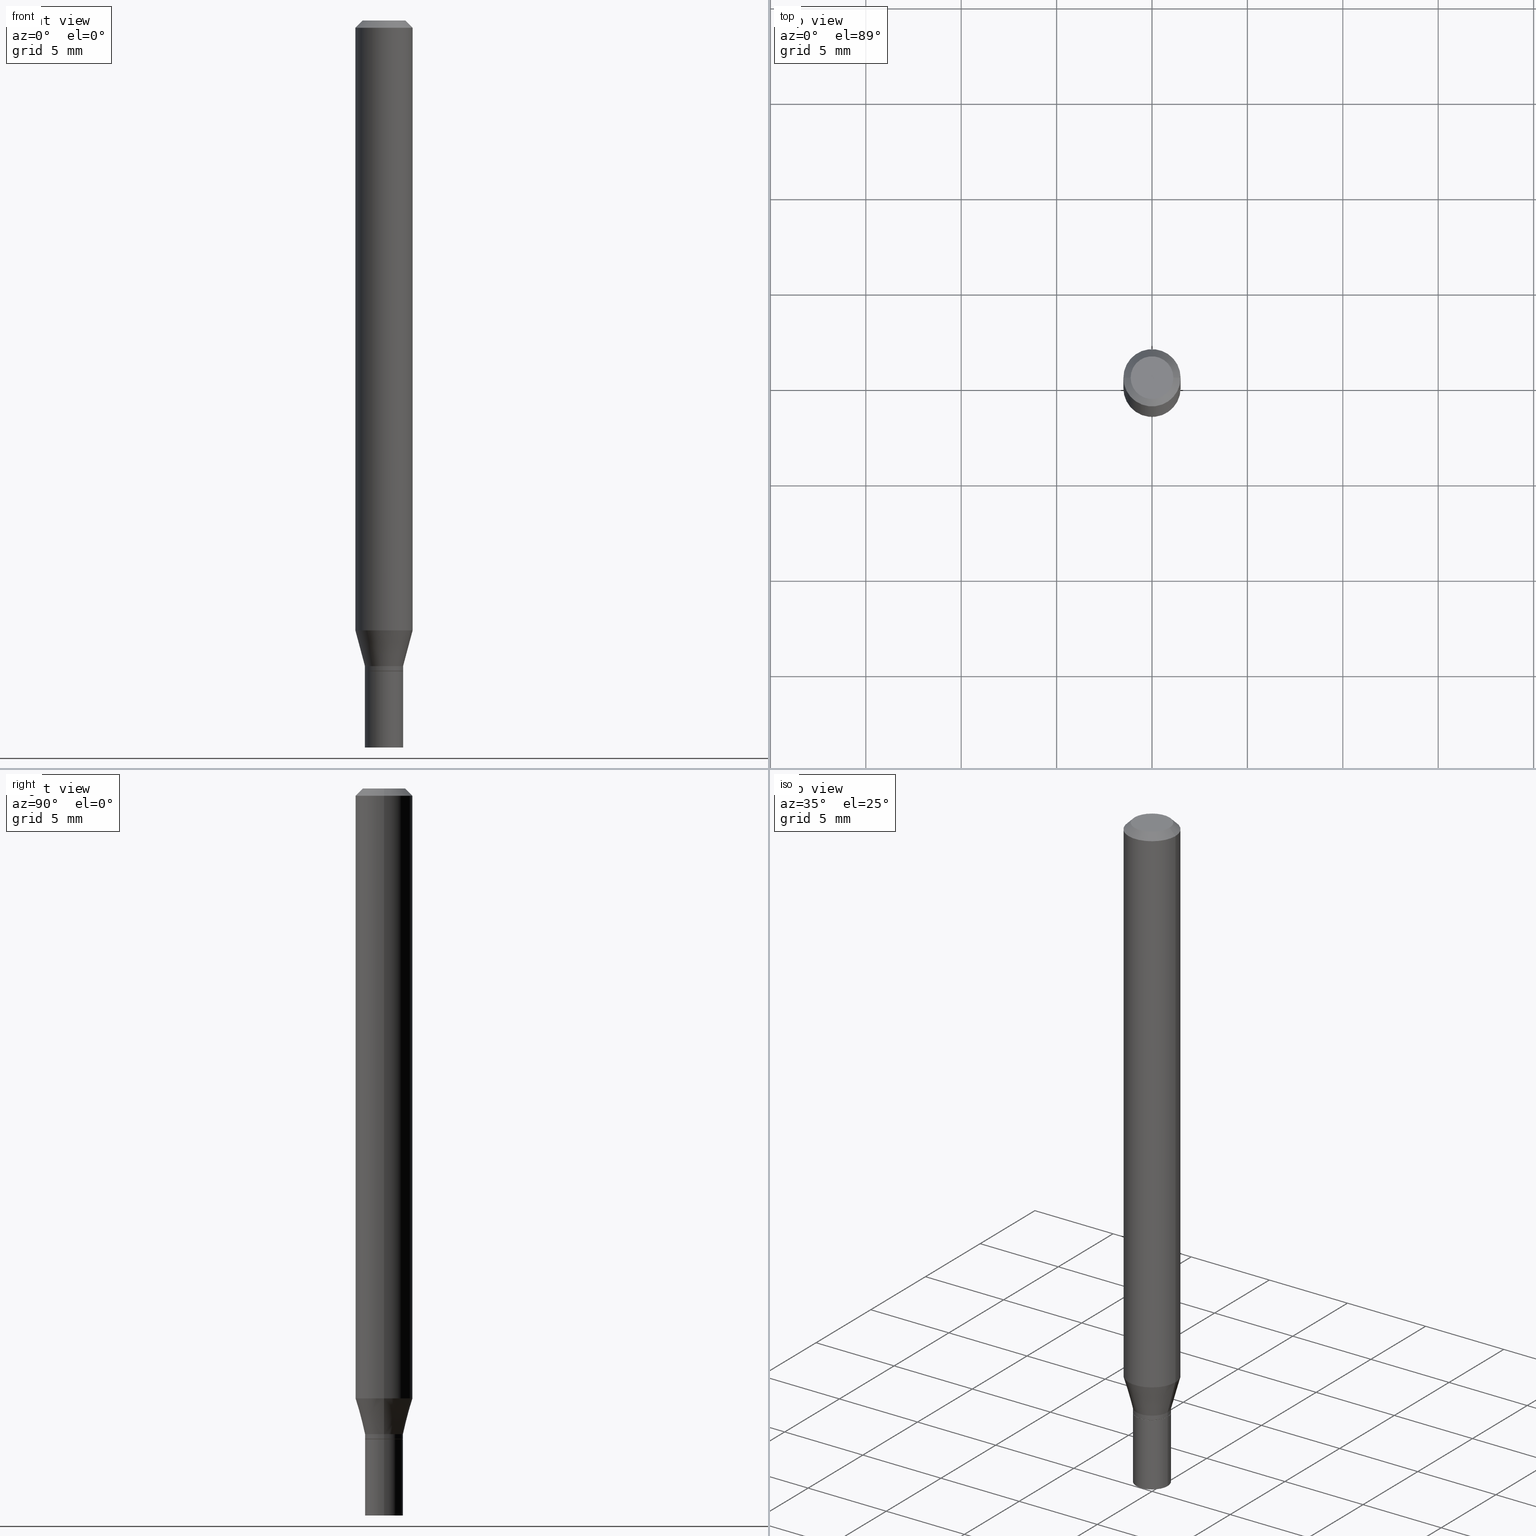
[diagram: canonical four-view strip — front | top / right | iso, engineering-drawing reading convention]
A machine part, canonical four-view strip (front | top / right | iso — engineering-drawing reading convention). The complete STEP part file that produces these views, byte-faithful:
ISO-10303-21;
HEADER;
FILE_DESCRIPTION (( 'STEP AP203' ),
    '1' );
FILE_NAME ('41613.STEP',
    '2024-03-12T19:15:27',
    ( '' ),
    ( '' ),
    'SwSTEP 2.0',
    'SolidWorks 2023',
    '' );
FILE_SCHEMA (( 'CONFIG_CONTROL_DESIGN' ));
ENDSEC;

DATA;
#1 = DIRECTION ( 'NONE',  ( 2.438088387897960049E-29, -3.491481338843145188E-15, -1.000000000000000000 ) ) ;
#2 = AXIS2_PLACEMENT_3D ( 'NONE', #194, #224, #183 ) ;
#3 = CIRCLE ( 'NONE', #431, 0.03935000000000000303 ) ;
#4 = CARTESIAN_POINT ( 'NONE',  ( 0.000000000000000000, 0.000000000000000000, 0.000000000000000000 ) ) ;
#5 = APPROVAL_ROLE ( '' ) ;
#6 = DIRECTION ( 'NONE',  ( 1.000000000000000000, -6.982962677686256455E-15, 0.000000000000000000 ) ) ;
#7 = CARTESIAN_POINT ( 'NONE',  ( 3.281819137900453618E-29, -4.685567956727501750E-15, -1.342000000000000304 ) ) ;
#8 = AXIS2_PLACEMENT_3D ( 'NONE', #396, #403, #324 ) ;
#9 = CARTESIAN_POINT ( 'NONE',  ( 3.257364449838602072E-29, -4.650653143339069312E-15, -1.331999999999999851 ) ) ;
#10 = CARTESIAN_POINT ( 'NONE',  ( 3.668203209277705088E-31, -5.237222008264718399E-17, -0.01499999999999999944 ) ) ;
#11 = EDGE_CURVE ( 'NONE', #166, #392, #422, .T. ) ;
#12 = PRODUCT_RELATED_PRODUCT_CATEGORY ( 'detail', '', ( #415 ) ) ;
#13 = DIRECTION ( 'NONE',  ( 1.000000000000000000, -6.982962677686265922E-15, 4.819687581474398999E-29 ) ) ;
#14 = CONICAL_SURFACE ( 'NONE', #110, 0.03934999999999993364, 0.2617993877991502960 ) ;
#15 = DIRECTION ( 'NONE',  ( -0.7071067811865396902, 2.468850131082174625E-15, -0.7071067811865553443 ) ) ;
#16 = ORIENTED_EDGE ( 'NONE', *, *, #290, .F. ) ;
#17 = LINE ( 'NONE', #86, #462 ) ;
#18 = ORIENTED_EDGE ( 'NONE', *, *, #114, .F. ) ;
#19 = ADVANCED_FACE ( 'NONE', ( #387 ), #27, .F. ) ;
#20 = DIRECTION ( 'NONE',  ( -2.445468806185136597E-29, 3.491481338843145583E-15, 1.000000000000000000 ) ) ;
#21 = EDGE_LOOP ( 'NONE', ( #264, #357, #225, #424 ) ) ;
#22 = DIRECTION ( 'NONE',  ( -2.445468806185136597E-29, 3.491481338843145583E-15, 1.000000000000000000 ) ) ;
#23 = AXIS2_PLACEMENT_3D ( 'NONE', #313, #273, #233 ) ;
#24 = ORIENTED_EDGE ( 'NONE', *, *, #312, .F. ) ;
#25 = FACE_OUTER_BOUND ( 'NONE', #299, .T. ) ;
#26 = DIRECTION ( 'NONE',  ( 1.000000000000000000, -6.982962677686266711E-15, 4.876176775795936353E-29 ) ) ;
#27 = PLANE ( 'NONE',  #60 ) ;
#28 = VECTOR ( 'NONE', #185, 39.37007874015748143 ) ;
#29 = DATE_AND_TIME ( #380, #414 ) ;
#30 = VERTEX_POINT ( 'NONE', #276 ) ;
#31 = EDGE_CURVE ( 'NONE', #460, #140, #87, .T. ) ;
#32 = VERTEX_POINT ( 'NONE', #102 ) ;
#33 = DIRECTION ( 'NONE',  ( -2.445468806185136597E-29, 3.491481338843145583E-15, 1.000000000000000000 ) ) ;
#34 = CC_DESIGN_APPROVAL ( #280, ( #443 ) ) ;
#35 = EDGE_CURVE ( 'NONE', #392, #123, #315, .T. ) ;
#36 = DIRECTION ( 'NONE',  ( -0.7071067811865656694, 7.493145998870420424E-15, 0.7071067811865294761 ) ) ;
#37 = CARTESIAN_POINT ( 'NONE',  ( 3.576687321579069994E-29, -5.368277968210015545E-15, -1.500000000000000222 ) ) ;
#38 = FACE_OUTER_BOUND ( 'NONE', #377, .T. ) ;
#39 = VECTOR ( 'NONE', #252, 39.37007874015748143 ) ;
#40 = CIRCLE ( 'NONE', #227, 0.03935000000000000303 ) ;
#41 = DIRECTION ( 'NONE',  ( 2.445468806185136597E-29, -3.491481338843145583E-15, -1.000000000000000000 ) ) ;
#42 = EDGE_CURVE ( 'NONE', #140, #460, #412, .T. ) ;
#43 = DIRECTION ( 'NONE',  ( 1.000000000000000000, -6.982962677686265922E-15, 4.876176775795935793E-29 ) ) ;
#44 = ORIENTED_EDGE ( 'NONE', *, *, #304, .T. ) ;
#45 = ADVANCED_FACE ( 'NONE', ( #25 ), #205, .F. ) ;
#46 = CARTESIAN_POINT ( 'NONE',  ( 0.04404999999999999888, -3.798447818264455642E-16, 3.533548453838735986E-16 ) ) ;
#47 = PERSON ( 'UNSPECIFIED', 'UNSPECIFIED', 'UNSPECIFIED', ('UNSPECIFIED'), ('UNSPECIFIED'), ('UNSPECIFIED') ) ;
#48 = ORIENTED_EDGE ( 'NONE', *, *, #350, .F. ) ;
#49 = VECTOR ( 'NONE', #105, 39.37007874015748143 ) ;
#50 =( GEOMETRIC_REPRESENTATION_CONTEXT ( 3 ) GLOBAL_UNCERTAINTY_ASSIGNED_CONTEXT ( ( #120 ) ) GLOBAL_UNIT_ASSIGNED_CONTEXT ( ( #386, #281, #454 ) ) REPRESENTATION_CONTEXT ( 'NONE', 'WORKASPACE' ) );
#51 = LINE ( 'NONE', #124, #405 ) ;
#52 = EDGE_LOOP ( 'NONE', ( #409, #464, #314, #230 ) ) ;
#53 = ADVANCED_FACE ( 'NONE', ( #385 ), #354, .T. ) ;
#54 = CARTESIAN_POINT ( 'NONE',  ( 0.000000000000000000, 0.000000000000000000, 0.000000000000000000 ) ) ;
#55 = ORIENTED_EDGE ( 'NONE', *, *, #42, .F. ) ;
#56 = CARTESIAN_POINT ( 'NONE',  ( -0.03934999999999993364, 2.795985665215989516E-16, -1.935600958015302139E-30 ) ) ;
#57 = ORIENTED_EDGE ( 'NONE', *, *, #290, .T. ) ;
#58 = MANIFOLD_SOLID_BREP ( 'Body-Move/Copy2[1]', #382 ) ;
#59 = EDGE_CURVE ( 'NONE', #123, #301, #199, .T. ) ;
#60 = AXIS2_PLACEMENT_3D ( 'NONE', #234, #134, #381 ) ;
#61 = DIRECTION ( 'NONE',  ( 1.000000000000000000, -6.982962677686265922E-15, 4.819687581474398999E-29 ) ) ;
#62 = CIRCLE ( 'NONE', #218, 0.03934999999999993364 ) ;
#63 = DIRECTION ( 'NONE',  ( -2.445468806185136597E-29, 3.491481338843145583E-15, 1.000000000000000000 ) ) ;
#64 = COORDINATED_UNIVERSAL_TIME_OFFSET ( 5, 0, .BEHIND. ) ;
#65 = VERTEX_POINT ( 'NONE', #398 ) ;
#66 = APPLICATION_PROTOCOL_DEFINITION ( 'international standard', 'config_control_design', 1994, #111 ) ;
#67 = DIRECTION ( 'NONE',  ( -1.000000000000000000, 6.982962677686265922E-15, -4.876176775795935793E-29 ) ) ;
#68 = ADVANCED_FACE ( 'NONE', ( #107 ), #69, .T. ) ;
#69 = CONICAL_SURFACE ( 'NONE', #188, 0.05905000000000001914, 0.7853981633974372878 ) ;
#70 = DIRECTION ( 'NONE',  ( -2.445468806185136597E-29, 3.491481338843145583E-15, 1.000000000000000000 ) ) ;
#71 = DATE_AND_TIME ( #248, #254 ) ;
#72 = ORIENTED_EDGE ( 'NONE', *, *, #221, .T. ) ;
#73 = CARTESIAN_POINT ( 'NONE',  ( 0.05905000000000000526, -4.123439461173741313E-16, 2.879382386107500571E-30 ) ) ;
#74 = APPLICATION_CONTEXT ( 'configuration controlled 3d designs of mechanical parts and assemblies' ) ;
#75 = DIRECTION ( 'NONE',  ( -2.445468806185136597E-29, 3.491481338843145583E-15, 1.000000000000000000 ) ) ;
#76 = VECTOR ( 'NONE', #98, 39.37007874015748143 ) ;
#77 = CYLINDRICAL_SURFACE ( 'NONE', #136, 0.03935000000000000303 ) ;
#78 = DATE_AND_TIME ( #257, #236 ) ;
#79 = DIRECTION ( 'NONE',  ( -2.445468806185136597E-29, 3.491481338843145583E-15, 1.000000000000000000 ) ) ;
#80 = CARTESIAN_POINT ( 'NONE',  ( 3.668203209277704895E-29, -5.237222008264718177E-15, -1.500000000000000222 ) ) ;
#81 = CONICAL_SURFACE ( 'NONE', #404, 0.03885000000000000259, 0.7853981633974739252 ) ;
#82 = VECTOR ( 'NONE', #90, 39.37007874015748143 ) ;
#83 = CYLINDRICAL_SURFACE ( 'NONE', #352, 0.03934999999999993364 ) ;
#84 = ADVANCED_FACE ( 'NONE', ( #178 ), #14, .T. ) ;
#85 = FACE_OUTER_BOUND ( 'NONE', #274, .T. ) ;
#86 = CARTESIAN_POINT ( 'NONE',  ( -0.03935000000000000303, 2.795985665215994447E-16, -1.935600958015305291E-30 ) ) ;
#87 = CIRCLE ( 'NONE', #291, 0.03885000000000000259 ) ;
#88 = DIRECTION ( 'NONE',  ( -2.445468806185136877E-29, 3.491481338843145188E-15, 1.000000000000000000 ) ) ;
#89 = ORIENTED_EDGE ( 'NONE', *, *, #171, .T. ) ;
#90 = DIRECTION ( 'NONE',  ( 0.7071067811865396902, -7.319954787623229224E-15, -0.7071067811865553443 ) ) ;
#91 = VERTEX_POINT ( 'NONE', #213 ) ;
#92 = ADVANCED_FACE ( 'NONE', ( #153 ), #287, .T. ) ;
#93 = APPROVAL_ROLE ( '' ) ;
#94 = ORIENTED_EDGE ( 'NONE', *, *, #319, .F. ) ;
#95 = AXIS2_PLACEMENT_3D ( 'NONE', #322, #70, #348 ) ;
#96 = PERSON_AND_ORGANIZATION ( #47, #117 ) ;
#97 = LOCAL_TIME ( 15, 15, 27.00000000000000000, #133 ) ;
#98 = DIRECTION ( 'NONE',  ( 0.2588190451025215721, 1.565188264969619995E-15, 0.9659258262890679791 ) ) ;
#99 = CARTESIAN_POINT ( 'NONE',  ( -8.641182519006289553E-45, 1.233731848647591164E-30, 3.533548453838711334E-16 ) ) ;
#100 = ORIENTED_EDGE ( 'NONE', *, *, #319, .T. ) ;
#101 = DIRECTION ( 'NONE',  ( 1.000000000000000000, -6.982962677686266711E-15, 0.000000000000000000 ) ) ;
#102 = CARTESIAN_POINT ( 'NONE',  ( 0.05905000000000001914, -4.647161662000214077E-16, -0.01499999999999999944 ) ) ;
#103 = DATE_TIME_ROLE ( 'creation_date' ) ;
#104 = AXIS2_PLACEMENT_3D ( 'NONE', #138, #244, #238 ) ;
#105 = DIRECTION ( 'NONE',  ( -2.445468806185136877E-29, 3.491481338843145188E-15, 1.000000000000000000 ) ) ;
#106 = PRODUCT_DEFINITION_FORMATION_WITH_SPECIFIED_SOURCE ( 'ANY', '', #415, .NOT_KNOWN. ) ;
#107 = FACE_OUTER_BOUND ( 'NONE', #21, .T. ) ;
#108 = DIRECTION ( 'NONE',  ( 1.000000000000000000, -6.982962677686258033E-15, 0.000000000000000000 ) ) ;
#109 = LINE ( 'NONE', #73, #235 ) ;
#110 = AXIS2_PLACEMENT_3D ( 'NONE', #113, #182, #359 ) ;
#111 = APPLICATION_CONTEXT ( 'configuration controlled 3d designs of mechanical parts and assemblies' ) ;
#112 = SECURITY_CLASSIFICATION_LEVEL ( 'unclassified' ) ;
#113 = CARTESIAN_POINT ( 'NONE',  ( 3.257364449838602072E-29, -4.650653143339069312E-15, -1.331999999999999851 ) ) ;
#114 = EDGE_CURVE ( 'NONE', #392, #32, #109, .T. ) ;
#115 = CARTESIAN_POINT ( 'NONE',  ( 0.000000000000000000, 0.000000000000000000, 0.000000000000000000 ) ) ;
#116 = CARTESIAN_POINT ( 'NONE',  ( 0.05904999999999999832, -4.806298490176690937E-15, -1.258478599090893102 ) ) ;
#117 = ORGANIZATION ( 'UNSPECIFIED', 'UNSPECIFIED', '' ) ;
#118 = DIRECTION ( 'NONE',  ( -2.445468806185136597E-29, 3.491481338843145583E-15, 1.000000000000000000 ) ) ;
#119 = EDGE_LOOP ( 'NONE', ( #318, #389, #272, #18 ) ) ;
#120 = UNCERTAINTY_MEASURE_WITH_UNIT (LENGTH_MEASURE( 1.000000000000000082E-05 ), #386, 'distance_accuracy_value', 'NONE');
#121 = CARTESIAN_POINT ( 'NONE',  ( 0.03885000000000000259, -4.958601797425034374E-15, -1.342500000000000249 ) ) ;
#122 = CC_DESIGN_PERSON_AND_ORGANIZATION_ASSIGNMENT ( #421, #167, ( #408 ) ) ;
#123 = VERTEX_POINT ( 'NONE', #177 ) ;
#124 = CARTESIAN_POINT ( 'NONE',  ( -0.05905000000000001914, 3.599717260347269535E-16, -0.01499999999999999944 ) ) ;
#125 = EDGE_LOOP ( 'NONE', ( #379, #411, #242, #310 ) ) ;
#126 = AXIS2_PLACEMENT_3D ( 'NONE', #137, #308, #101 ) ;
#127 = LINE ( 'NONE', #121, #202 ) ;
#128 = EDGE_LOOP ( 'NONE', ( #89, #282, #303, #455 ) ) ;
#129 = PRODUCT_DEFINITION_SHAPE ( 'NONE', 'NONE',  #408 ) ;
#130 = ORIENTED_EDGE ( 'NONE', *, *, #336, .T. ) ;
#131 = ADVANCED_FACE ( 'NONE', ( #258 ), #325, .T. ) ;
#132 = EDGE_CURVE ( 'NONE', #140, #278, #152, .T. ) ;
#133 = COORDINATED_UNIVERSAL_TIME_OFFSET ( 5, 0, .BEHIND. ) ;
#134 = DIRECTION ( 'NONE',  ( 2.438088387897960049E-29, -3.491481338843145188E-15, -1.000000000000000000 ) ) ;
#135 = ADVANCED_FACE ( 'NONE', ( #38 ), #344, .T. ) ;
#136 = AXIS2_PLACEMENT_3D ( 'NONE', #180, #250, #439 ) ;
#137 = CARTESIAN_POINT ( 'NONE',  ( 3.668203209277705088E-31, -5.237222008264718399E-17, -0.01499999999999999944 ) ) ;
#138 = CARTESIAN_POINT ( 'NONE',  ( 3.077570157328349519E-29, -4.393954544059317594E-15, -1.258478599090893102 ) ) ;
#139 = ADVANCED_FACE ( 'NONE', ( #217 ), #77, .T. ) ;
#140 = VERTEX_POINT ( 'NONE', #330 ) ;
#141 = ADVANCED_FACE ( 'NONE', ( #394 ), #363, .F. ) ;
#142 = CARTESIAN_POINT ( 'NONE',  ( -0.05905000000000000526, 4.195754854663391971E-16, -2.904631170795522242E-30 ) ) ;
#143 = CIRCLE ( 'NONE', #430, 0.05905000000000001914 ) ;
#144 = ORIENTED_EDGE ( 'NONE', *, *, #11, .F. ) ;
#145 = AXIS2_PLACEMENT_3D ( 'NONE', #373, #22, #13 ) ;
#146 = CARTESIAN_POINT ( 'NONE',  ( -0.03885000000000000259, -4.411267844554123968E-15, -1.342500000000000249 ) ) ;
#147 = SHAPE_DEFINITION_REPRESENTATION ( #129, #259 ) ;
#148 = DIRECTION ( 'NONE',  ( 1.000000000000000000, -6.982962677686269077E-15, 0.000000000000000000 ) ) ;
#149 = DIRECTION ( 'NONE',  ( -2.445468806185136597E-29, 3.491481338843145583E-15, 1.000000000000000000 ) ) ;
#150 = AXIS2_PLACEMENT_3D ( 'NONE', #115, #79, #288 ) ;
#151 = APPROVAL_PERSON_ORGANIZATION ( #388, #228, #93 ) ;
#152 = LINE ( 'NONE', #146, #181 ) ;
#153 = FACE_OUTER_BOUND ( 'NONE', #52, .T. ) ;
#154 = DIRECTION ( 'NONE',  ( -2.445468806185136597E-29, 3.491481338843145583E-15, 1.000000000000000000 ) ) ;
#155 = VERTEX_POINT ( 'NONE', #368 ) ;
#156 = CC_DESIGN_SECURITY_CLASSIFICATION ( #443, ( #106 ) ) ;
#157 = DIRECTION ( 'NONE',  ( 1.000000000000000000, -6.982962677686256455E-15, 0.000000000000000000 ) ) ;
#158 = ORIENTED_EDGE ( 'NONE', *, *, #171, .F. ) ;
#159 = ADVANCED_FACE ( 'NONE', ( #295 ), #187, .T. ) ;
#160 = CARTESIAN_POINT ( 'NONE',  ( 0.05905000000000001914, -4.574846268510562433E-16, -0.01499999999999999944 ) ) ;
#161 = DIRECTION ( 'NONE',  ( 1.000000000000000000, -6.982962677686269077E-15, 0.000000000000000000 ) ) ;
#162 = APPROVAL ( #237, 'UNSPECIFIED' ) ;
#163 = AXIS2_PLACEMENT_3D ( 'NONE', #173, #320, #26 ) ;
#164 = CIRCLE ( 'NONE', #247, 0.04404999999999999888 ) ;
#165 = CARTESIAN_POINT ( 'NONE',  ( 0.000000000000000000, 0.000000000000000000, 0.000000000000000000 ) ) ;
#166 = VERTEX_POINT ( 'NONE', #327 ) ;
#167 = PERSON_AND_ORGANIZATION_ROLE ( 'creator' ) ;
#168 = ORIENTED_EDGE ( 'NONE', *, *, #420, .T. ) ;
#169 = ORIENTED_EDGE ( 'NONE', *, *, #11, .T. ) ;
#170 = CARTESIAN_POINT ( 'NONE',  ( 3.283041872303546419E-29, -4.687313697396923253E-15, -1.342500000000000249 ) ) ;
#171 = EDGE_CURVE ( 'NONE', #65, #278, #253, .T. ) ;
#172 = APPROVAL_DATE_TIME ( #29, #228 ) ;
#173 = CARTESIAN_POINT ( 'NONE',  ( 0.000000000000000000, 0.000000000000000000, 0.000000000000000000 ) ) ;
#174 = VERTEX_POINT ( 'NONE', #293 ) ;
#175 = DIRECTION ( 'NONE',  ( 1.000000000000000000, -6.982962677686265922E-15, 4.876176775795935793E-29 ) ) ;
#176 = PERSON_AND_ORGANIZATION_ROLE ( 'classification_officer' ) ;
#177 = CARTESIAN_POINT ( 'NONE',  ( -0.05904999999999999832, -3.974379058592978101E-15, -1.258478599090893102 ) ) ;
#178 = FACE_OUTER_BOUND ( 'NONE', #374, .T. ) ;
#179 = PERSON_AND_ORGANIZATION ( #47, #117 ) ;
#180 = CARTESIAN_POINT ( 'NONE',  ( 0.000000000000000000, 0.000000000000000000, 0.000000000000000000 ) ) ;
#181 = VECTOR ( 'NONE', #36, 39.37007874015748143 ) ;
#182 = DIRECTION ( 'NONE',  ( -2.445468806185136597E-29, 3.491481338843145583E-15, 1.000000000000000000 ) ) ;
#183 = DIRECTION ( 'NONE',  ( 1.000000000000000000, -6.982962677686269077E-15, 0.000000000000000000 ) ) ;
#184 = ORIENTED_EDGE ( 'NONE', *, *, #283, .T. ) ;
#185 = DIRECTION ( 'NONE',  ( -2.445468806185136877E-29, 3.491481338843145188E-15, 1.000000000000000000 ) ) ;
#186 = ORIENTED_EDGE ( 'NONE', *, *, #428, .F. ) ;
#187 = CONICAL_SURFACE ( 'NONE', #459, 0.03934999999999993364, 0.2617993877991502960 ) ;
#188 = AXIS2_PLACEMENT_3D ( 'NONE', #210, #41, #208 ) ;
#189 = CIRCLE ( 'NONE', #126, 0.05905000000000001914 ) ;
#190 = DIRECTION ( 'NONE',  ( -2.445468806185136597E-29, 3.491481338843145583E-15, 1.000000000000000000 ) ) ;
#191 = ORIENTED_EDGE ( 'NONE', *, *, #401, .T. ) ;
#192 = DIRECTION ( 'NONE',  ( 1.000000000000000000, -6.982962677686256455E-15, 0.000000000000000000 ) ) ;
#193 = EDGE_LOOP ( 'NONE', ( #16, #130, #449, #207 ) ) ;
#194 = CARTESIAN_POINT ( 'NONE',  ( 3.283041872303546419E-29, -4.687313697396923253E-15, -1.342500000000000249 ) ) ;
#195 = ORIENTED_EDGE ( 'NONE', *, *, #221, .F. ) ;
#196 = VECTOR ( 'NONE', #263, 39.37007874015748143 ) ;
#197 = CARTESIAN_POINT ( 'NONE',  ( 2.747795813669874081E-16, 0.03934999999999531234, -1.342500000000000471 ) ) ;
#198 = APPROVAL_DATE_TIME ( #71, #162 ) ;
#199 = LINE ( 'NONE', #142, #49 ) ;
#200 = PERSON_AND_ORGANIZATION ( #47, #117 ) ;
#201 = ORIENTED_EDGE ( 'NONE', *, *, #341, .T. ) ;
#202 = VECTOR ( 'NONE', #219, 39.37007874015748143 ) ;
#203 = DIRECTION ( 'NONE',  ( 0.000000000000000000, 0.000000000000000000, 1.000000000000000000 ) ) ;
#204 = MANIFOLD_SOLID_BREP ( 'Body-Move/Copy2[2]', #245 ) ;
#205 = PLANE ( 'NONE',  #328 ) ;
#206 = DIRECTION ( 'NONE',  ( -2.445468806185136597E-29, 3.491481338843145583E-15, 1.000000000000000000 ) ) ;
#207 = ORIENTED_EDGE ( 'NONE', *, *, #283, .F. ) ;
#208 = DIRECTION ( 'NONE',  ( -1.000000000000000000, 6.982962677686266711E-15, 0.000000000000000000 ) ) ;
#209 = EDGE_CURVE ( 'NONE', #65, #166, #215, .T. ) ;
#210 = CARTESIAN_POINT ( 'NONE',  ( 3.668203209277705088E-31, -5.237222008264718399E-17, -0.01499999999999999944 ) ) ;
#211 = AXIS2_PLACEMENT_3D ( 'NONE', #347, #203, #349 ) ;
#212 = DATE_AND_TIME ( #214, #360 ) ;
#213 = CARTESIAN_POINT ( 'NONE',  ( -0.03934999999999993364, -4.172716817705224403E-15, -1.331999999999999851 ) ) ;
#214 = CALENDAR_DATE ( 2024, 12, 3 ) ;
#215 = LINE ( 'NONE', #260, #39 ) ;
#216 = PERSON_AND_ORGANIZATION ( #47, #117 ) ;
#217 = FACE_OUTER_BOUND ( 'NONE', #426, .T. ) ;
#218 = AXIS2_PLACEMENT_3D ( 'NONE', #261, #154, #407 ) ;
#219 = DIRECTION ( 'NONE',  ( 0.7071067811865656694, -2.468850131082446387E-15, 0.7071067811865294761 ) ) ;
#220 = EDGE_CURVE ( 'NONE', #123, #392, #307, .T. ) ;
#221 = EDGE_CURVE ( 'NONE', #155, #268, #366, .T. ) ;
#222 = CARTESIAN_POINT ( 'NONE',  ( 3.668203209277704895E-29, -5.237222008264718177E-15, -1.500000000000000222 ) ) ;
#223 = ORIENTED_EDGE ( 'NONE', *, *, #361, .F. ) ;
#224 = DIRECTION ( 'NONE',  ( -2.445468806185136597E-29, 3.491481338843145583E-15, 1.000000000000000000 ) ) ;
#225 = ORIENTED_EDGE ( 'NONE', *, *, #240, .T. ) ;
#226 = AXIS2_PLACEMENT_3D ( 'NONE', #80, #331, #148 ) ;
#227 = AXIS2_PLACEMENT_3D ( 'NONE', #222, #118, #342 ) ;
#228 = APPROVAL ( #353, 'UNSPECIFIED' ) ;
#229 = LINE ( 'NONE', #441, #28 ) ;
#230 = ORIENTED_EDGE ( 'NONE', *, *, #418, .F. ) ;
#231 = CARTESIAN_POINT ( 'NONE',  ( -0.03935000000000000303, -4.682669286309222109E-15, -1.500000000000000222 ) ) ;
#232 = ORIENTED_EDGE ( 'NONE', *, *, #35, .F. ) ;
#233 = DIRECTION ( 'NONE',  ( 1.000000000000000000, -6.982962677686256455E-15, 0.000000000000000000 ) ) ;
#234 = CARTESIAN_POINT ( 'NONE',  ( 3.075995059520799729E-16, 0.04404999999999999888, 2.287766971589501637E-17 ) ) ;
#235 = VECTOR ( 'NONE', #436, 39.37007874015748143 ) ;
#236 = LOCAL_TIME ( 15, 15, 27.00000000000000000, #393 ) ;
#237 = APPROVAL_STATUS ( 'not_yet_approved' ) ;
#238 = DIRECTION ( 'NONE',  ( 1.000000000000000000, -6.982962677686273021E-15, 0.000000000000000000 ) ) ;
#239 = CC_DESIGN_PERSON_AND_ORGANIZATION_ASSIGNMENT ( #179, #176, ( #443 ) ) ;
#240 = EDGE_CURVE ( 'NONE', #32, #301, #143, .T. ) ;
#241 =( LENGTH_UNIT ( ) NAMED_UNIT ( * ) SI_UNIT ( $, .METRE. ) );
#242 = ORIENTED_EDGE ( 'NONE', *, *, #114, .T. ) ;
#243 = APPLICATION_PROTOCOL_DEFINITION ( 'international standard', 'config_control_design', 1994, #74 ) ;
#244 = DIRECTION ( 'NONE',  ( -2.445468806185136597E-29, 3.491481338843145583E-15, 1.000000000000000000 ) ) ;
#245 = CLOSED_SHELL ( 'NONE', ( #355, #289, #68, #309, #159, #84, #131, #135, #19, #395, #271, #92 ) ) ;
#246 = CC_DESIGN_PERSON_AND_ORGANIZATION_ASSIGNMENT ( #438, #399, ( #106 ) ) ;
#247 = AXIS2_PLACEMENT_3D ( 'NONE', #99, #206, #61 ) ;
#248 = CALENDAR_DATE ( 2024, 12, 3 ) ;
#249 = DIRECTION ( 'NONE',  ( 1.000000000000000000, -6.982962677686256455E-15, 0.000000000000000000 ) ) ;
#250 = DIRECTION ( 'NONE',  ( -2.445468806185136597E-29, 3.491481338843145583E-15, 1.000000000000000000 ) ) ;
#251 = APPROVAL_DATE_TIME ( #212, #280 ) ;
#252 = DIRECTION ( 'NONE',  ( -2.445468806185136877E-29, 3.491481338843145188E-15, 1.000000000000000000 ) ) ;
#253 = CIRCLE ( 'NONE', #437, 0.03934999999999992670 ) ;
#254 = LOCAL_TIME ( 15, 15, 27.00000000000000000, #64 ) ;
#255 = DIRECTION ( 'NONE',  ( -1.000000000000000000, 6.982962677686266711E-15, 0.000000000000000000 ) ) ;
#256 = VECTOR ( 'NONE', #302, 39.37007874015748143 ) ;
#257 = CALENDAR_DATE ( 2024, 12, 3 ) ;
#258 = FACE_OUTER_BOUND ( 'NONE', #125, .T. ) ;
#259 = ADVANCED_BREP_SHAPE_REPRESENTATION ( '41613', ( #58, #204, #211 ), #50 ) ;
#260 = CARTESIAN_POINT ( 'NONE',  ( 0.03934999999999993364, -2.747795813669541281E-16, 1.918775561275697570E-30 ) ) ;
#261 = CARTESIAN_POINT ( 'NONE',  ( 3.257364449838602072E-29, -4.650653143339069312E-15, -1.331999999999999851 ) ) ;
#262 = AXIS2_PLACEMENT_3D ( 'NONE', #448, #332, #43 ) ;
#263 = DIRECTION ( 'NONE',  ( -2.445468806185136877E-29, 3.491481338843145188E-15, 1.000000000000000000 ) ) ;
#264 = ORIENTED_EDGE ( 'NONE', *, *, #442, .F. ) ;
#265 = CARTESIAN_POINT ( 'NONE',  ( 3.283041872303546419E-29, -4.687313697396923253E-15, -1.342500000000000249 ) ) ;
#266 = EDGE_LOOP ( 'NONE', ( #195, #351 ) ) ;
#267 = CYLINDRICAL_SURFACE ( 'NONE', #397, 0.05905000000000000526 ) ;
#268 = VERTEX_POINT ( 'NONE', #231 ) ;
#269 = AXIS2_PLACEMENT_3D ( 'NONE', #400, #296, #255 ) ;
#270 = DIRECTION ( 'NONE',  ( -2.445468806185136597E-29, 3.491481338843145583E-15, 1.000000000000000000 ) ) ;
#271 = ADVANCED_FACE ( 'NONE', ( #450 ), #81, .T. ) ;
#272 = ORIENTED_EDGE ( 'NONE', *, *, #240, .F. ) ;
#273 = DIRECTION ( 'NONE',  ( -2.445468806185136597E-29, 3.491481338843145583E-15, 1.000000000000000000 ) ) ;
#274 = EDGE_LOOP ( 'NONE', ( #333, #311, #158, #223 ) ) ;
#275 = CALENDAR_DATE ( 2024, 12, 3 ) ;
#276 = CARTESIAN_POINT ( 'NONE',  ( 0.03935000000000000303, -4.962093278763878170E-15, -1.342500000000000249 ) ) ;
#277 = AXIS2_PLACEMENT_3D ( 'NONE', #4, #33, #365 ) ;
#278 = VERTEX_POINT ( 'NONE', #444 ) ;
#279 = ORIENTED_EDGE ( 'NONE', *, *, #418, .T. ) ;
#280 = APPROVAL ( #434, 'UNSPECIFIED' ) ;
#281 =( NAMED_UNIT ( * ) PLANE_ANGLE_UNIT ( ) SI_UNIT ( $, .RADIAN. ) );
#282 = ORIENTED_EDGE ( 'NONE', *, *, #375, .T. ) ;
#283 = EDGE_CURVE ( 'NONE', #466, #30, #284, .T. ) ;
#284 = CIRCLE ( 'NONE', #2, 0.03935000000000000303 ) ;
#285 = CC_DESIGN_APPROVAL ( #228, ( #408 ) ) ;
#286 = ORIENTED_EDGE ( 'NONE', *, *, #361, .T. ) ;
#287 = CYLINDRICAL_SURFACE ( 'NONE', #150, 0.03934999999999993364 ) ;
#288 = DIRECTION ( 'NONE',  ( 1.000000000000000000, -6.982962677686266711E-15, 4.876176775795935793E-29 ) ) ;
#289 = ADVANCED_FACE ( 'NONE', ( #85 ), #329, .T. ) ;
#290 = EDGE_CURVE ( 'NONE', #268, #466, #17, .T. ) ;
#291 = AXIS2_PLACEMENT_3D ( 'NONE', #170, #63, #249 ) ;
#292 = AXIS2_PLACEMENT_3D ( 'NONE', #300, #270, #192 ) ;
#293 = CARTESIAN_POINT ( 'NONE',  ( -0.04404999999999999888, 3.337856159934041534E-16, 3.533548453838689148E-16 ) ) ;
#294 = PERSON_AND_ORGANIZATION_ROLE ( 'creator' ) ;
#295 = FACE_OUTER_BOUND ( 'NONE', #419, .T. ) ;
#296 = DIRECTION ( 'NONE',  ( 2.445468806185136597E-29, -3.491481338843145583E-15, -1.000000000000000000 ) ) ;
#297 = EDGE_CURVE ( 'NONE', #174, #301, #51, .T. ) ;
#298 = LINE ( 'NONE', #160, #82 ) ;
#299 = EDGE_LOOP ( 'NONE', ( #201, #184 ) ) ;
#300 = CARTESIAN_POINT ( 'NONE',  ( 3.283041872303546419E-29, -4.687313697396923253E-15, -1.342500000000000249 ) ) ;
#301 = VERTEX_POINT ( 'NONE', #416 ) ;
#302 = DIRECTION ( 'NONE',  ( -0.2588190451025215721, 5.211531920934551831E-15, 0.9659258262890679791 ) ) ;
#303 = ORIENTED_EDGE ( 'NONE', *, *, #401, .F. ) ;
#304 = EDGE_CURVE ( 'NONE', #174, #343, #337, .T. ) ;
#305 = DIRECTION ( 'NONE',  ( 1.000000000000000000, -6.982962677686266711E-15, 4.876176775795935793E-29 ) ) ;
#306 = ORIENTED_EDGE ( 'NONE', *, *, #31, .F. ) ;
#307 = CIRCLE ( 'NONE', #8, 0.05904999999999999832 ) ;
#308 = DIRECTION ( 'NONE',  ( -2.445468806185136597E-29, 3.491481338843145583E-15, 1.000000000000000000 ) ) ;
#309 = ADVANCED_FACE ( 'NONE', ( #340 ), #267, .T. ) ;
#310 = ORIENTED_EDGE ( 'NONE', *, *, #420, .F. ) ;
#311 = ORIENTED_EDGE ( 'NONE', *, *, #132, .T. ) ;
#312 = EDGE_CURVE ( 'NONE', #343, #32, #298, .T. ) ;
#313 = CARTESIAN_POINT ( 'NONE',  ( 3.257364449838602072E-29, -4.650653143339069312E-15, -1.331999999999999851 ) ) ;
#314 = ORIENTED_EDGE ( 'NONE', *, *, #209, .T. ) ;
#315 = CIRCLE ( 'NONE', #104, 0.05904999999999999832 ) ;
#316 = CARTESIAN_POINT ( 'NONE',  ( -0.03935000000000000303, -4.682669286309222109E-15, -1.342500000000000249 ) ) ;
#317 = CC_DESIGN_PERSON_AND_ORGANIZATION_ASSIGNMENT ( #200, #425, ( #415 ) ) ;
#318 = ORIENTED_EDGE ( 'NONE', *, *, #35, .T. ) ;
#319 = EDGE_CURVE ( 'NONE', #91, #123, #371, .T. ) ;
#320 = DIRECTION ( 'NONE',  ( -2.445468806185136597E-29, 3.491481338843145583E-15, 1.000000000000000000 ) ) ;
#321 = DIMENSIONAL_EXPONENTS ( 1.000000000000000000, 0.000000000000000000, 0.000000000000000000, 0.000000000000000000, 0.000000000000000000, 0.000000000000000000, 0.000000000000000000 ) ;
#322 = CARTESIAN_POINT ( 'NONE',  ( 3.283041872303546419E-29, -4.687313697396923253E-15, -1.342500000000000249 ) ) ;
#323 = CIRCLE ( 'NONE', #390, 0.03934999999999992670 ) ;
#324 = DIRECTION ( 'NONE',  ( 1.000000000000000000, -6.982962677686273021E-15, 0.000000000000000000 ) ) ;
#325 = CYLINDRICAL_SURFACE ( 'NONE', #277, 0.05905000000000000526 ) ;
#326 = PERSON_AND_ORGANIZATION ( #47, #117 ) ;
#327 = CARTESIAN_POINT ( 'NONE',  ( 0.03934999999999993364, -4.925432724706023440E-15, -1.331999999999999851 ) ) ;
#328 = AXIS2_PLACEMENT_3D ( 'NONE', #197, #1, #67 ) ;
#329 = CONICAL_SURFACE ( 'NONE', #292, 0.03885000000000000259, 0.7853981633974739252 ) ;
#330 = CARTESIAN_POINT ( 'NONE',  ( -0.03885000000000000259, -4.408618617380014344E-15, -1.342500000000000249 ) ) ;
#331 = DIRECTION ( 'NONE',  ( -2.445468806185136597E-29, 3.491481338843145583E-15, 1.000000000000000000 ) ) ;
#332 = DIRECTION ( 'NONE',  ( -2.438088387897960049E-29, 3.491481338843145188E-15, 1.000000000000000000 ) ) ;
#333 = ORIENTED_EDGE ( 'NONE', *, *, #31, .T. ) ;
#334 = DIRECTION ( 'NONE',  ( -2.445468806185136597E-29, 3.491481338843145583E-15, 1.000000000000000000 ) ) ;
#335 = AXIS2_PLACEMENT_3D ( 'NONE', #37, #435, #175 ) ;
#336 = EDGE_CURVE ( 'NONE', #268, #155, #40, .T. ) ;
#337 = CIRCLE ( 'NONE', #145, 0.04404999999999999888 ) ;
#338 = ORIENTED_EDGE ( 'NONE', *, *, #442, .T. ) ;
#339 = CARTESIAN_POINT ( 'NONE',  ( 3.283041872303546419E-29, -4.687313697396923253E-15, -1.342500000000000249 ) ) ;
#340 = FACE_OUTER_BOUND ( 'NONE', #119, .T. ) ;
#341 = EDGE_CURVE ( 'NONE', #30, #466, #3, .T. ) ;
#342 = DIRECTION ( 'NONE',  ( 1.000000000000000000, -6.982962677686269077E-15, 0.000000000000000000 ) ) ;
#343 = VERTEX_POINT ( 'NONE', #46 ) ;
#344 = CONICAL_SURFACE ( 'NONE', #269, 0.05905000000000001914, 0.7853981633974372878 ) ;
#345 = CARTESIAN_POINT ( 'NONE',  ( 0.03885000000000000259, -4.958601797425034374E-15, -1.342500000000000249 ) ) ;
#346 = CARTESIAN_POINT ( 'NONE',  ( 0.03934999999999993364, -4.925432724706023440E-15, -1.331999999999999851 ) ) ;
#347 = CARTESIAN_POINT ( 'NONE',  ( 0.000000000000000000, 0.000000000000000000, 0.000000000000000000 ) ) ;
#348 = DIRECTION ( 'NONE',  ( 1.000000000000000000, -6.982962677686256455E-15, 0.000000000000000000 ) ) ;
#349 = DIRECTION ( 'NONE',  ( 1.000000000000000000, 0.000000000000000000, 0.000000000000000000 ) ) ;
#350 = EDGE_CURVE ( 'NONE', #155, #30, #229, .T. ) ;
#351 = ORIENTED_EDGE ( 'NONE', *, *, #336, .F. ) ;
#352 = AXIS2_PLACEMENT_3D ( 'NONE', #54, #334, #305 ) ;
#353 = APPROVAL_STATUS ( 'not_yet_approved' ) ;
#354 = CYLINDRICAL_SURFACE ( 'NONE', #163, 0.03935000000000000303 ) ;
#355 = ADVANCED_FACE ( 'NONE', ( #376 ), #83, .T. ) ;
#356 = DIRECTION ( 'NONE',  ( -2.445468806185136597E-29, 3.491481338843145583E-15, 1.000000000000000000 ) ) ;
#357 = ORIENTED_EDGE ( 'NONE', *, *, #312, .T. ) ;
#358 = COORDINATED_UNIVERSAL_TIME_OFFSET ( 5, 0, .BEHIND. ) ;
#359 = DIRECTION ( 'NONE',  ( 1.000000000000000000, -6.982962677686256455E-15, 0.000000000000000000 ) ) ;
#360 = LOCAL_TIME ( 15, 15, 27.00000000000000000, #358 ) ;
#361 = EDGE_CURVE ( 'NONE', #460, #65, #127, .T. ) ;
#362 = DIRECTION ( 'NONE',  ( 1.000000000000000000, -6.982962677686266711E-15, 0.000000000000000000 ) ) ;
#363 = PLANE ( 'NONE',  #335 ) ;
#364 = CC_DESIGN_DATE_AND_TIME_ASSIGNMENT ( #78, #402, ( #443 ) ) ;
#365 = DIRECTION ( 'NONE',  ( 1.000000000000000000, -6.982962677686267499E-15, 4.876176775795936353E-29 ) ) ;
#366 = CIRCLE ( 'NONE', #226, 0.03935000000000000303 ) ;
#367 = APPROVAL_PERSON_ORGANIZATION ( #96, #162, #384 ) ;
#368 = CARTESIAN_POINT ( 'NONE',  ( 0.03935000000000000303, -5.512001589631673094E-15, -1.500000000000000222 ) ) ;
#369 = PLANE ( 'NONE',  #262 ) ;
#370 = EDGE_LOOP ( 'NONE', ( #306, #55 ) ) ;
#371 = LINE ( 'NONE', #413, #256 ) ;
#372 = ORIENTED_EDGE ( 'NONE', *, *, #297, .T. ) ;
#373 = CARTESIAN_POINT ( 'NONE',  ( -8.641182519006289553E-45, 1.233731848647591164E-30, 3.533548453838711334E-16 ) ) ;
#374 = EDGE_LOOP ( 'NONE', ( #94, #279, #169, #445 ) ) ;
#375 = EDGE_CURVE ( 'NONE', #278, #91, #378, .T. ) ;
#376 = FACE_OUTER_BOUND ( 'NONE', #128, .T. ) ;
#377 = EDGE_LOOP ( 'NONE', ( #24, #452, #372, #168 ) ) ;
#378 = LINE ( 'NONE', #56, #196 ) ;
#379 = ORIENTED_EDGE ( 'NONE', *, *, #59, .F. ) ;
#380 = CALENDAR_DATE ( 2024, 12, 3 ) ;
#381 = DIRECTION ( 'NONE',  ( -1.000000000000000000, 6.982962677686265922E-15, -4.876176775795935793E-29 ) ) ;
#382 = CLOSED_SHELL ( 'NONE', ( #139, #141, #53, #45 ) ) ;
#383 = CC_DESIGN_APPROVAL ( #162, ( #106 ) ) ;
#384 = APPROVAL_ROLE ( '' ) ;
#385 = FACE_OUTER_BOUND ( 'NONE', #193, .T. ) ;
#386 =( CONVERSION_BASED_UNIT ( 'INCH', #423 ) LENGTH_UNIT ( ) NAMED_UNIT ( #321 ) );
#387 = FACE_OUTER_BOUND ( 'NONE', #433, .T. ) ;
#388 = PERSON_AND_ORGANIZATION ( #47, #117 ) ;
#389 = ORIENTED_EDGE ( 'NONE', *, *, #59, .T. ) ;
#390 = AXIS2_PLACEMENT_3D ( 'NONE', #463, #356, #458 ) ;
#391 = COORDINATED_UNIVERSAL_TIME_OFFSET ( 5, 0, .BEHIND. ) ;
#392 = VERTEX_POINT ( 'NONE', #116 ) ;
#393 = COORDINATED_UNIVERSAL_TIME_OFFSET ( 5, 0, .BEHIND. ) ;
#394 = FACE_OUTER_BOUND ( 'NONE', #266, .T. ) ;
#395 = ADVANCED_FACE ( 'NONE', ( #410 ), #369, .F. ) ;
#396 = CARTESIAN_POINT ( 'NONE',  ( 3.077570157328349519E-29, -4.393954544059317594E-15, -1.258478599090893102 ) ) ;
#397 = AXIS2_PLACEMENT_3D ( 'NONE', #165, #446, #406 ) ;
#398 = CARTESIAN_POINT ( 'NONE',  ( 0.03934999999999992670, -4.960347538094455878E-15, -1.342000000000000304 ) ) ;
#399 = PERSON_AND_ORGANIZATION_ROLE ( 'design_supplier' ) ;
#400 = CARTESIAN_POINT ( 'NONE',  ( 3.668203209277705088E-31, -5.237222008264718399E-17, -0.01499999999999999944 ) ) ;
#401 = EDGE_CURVE ( 'NONE', #166, #91, #62, .T. ) ;
#402 = DATE_TIME_ROLE ( 'classification_date' ) ;
#403 = DIRECTION ( 'NONE',  ( -2.445468806185136597E-29, 3.491481338843145583E-15, 1.000000000000000000 ) ) ;
#404 = AXIS2_PLACEMENT_3D ( 'NONE', #339, #190, #157 ) ;
#405 = VECTOR ( 'NONE', #15, 39.37007874015748143 ) ;
#406 = DIRECTION ( 'NONE',  ( 1.000000000000000000, -6.982962677686267499E-15, 4.876176775795936353E-29 ) ) ;
#407 = DIRECTION ( 'NONE',  ( 1.000000000000000000, -6.982962677686256455E-15, 0.000000000000000000 ) ) ;
#408 = PRODUCT_DEFINITION ( 'UNKNOWN', '', #106, #453 ) ;
#409 = ORIENTED_EDGE ( 'NONE', *, *, #375, .F. ) ;
#410 = FACE_OUTER_BOUND ( 'NONE', #370, .T. ) ;
#411 = ORIENTED_EDGE ( 'NONE', *, *, #220, .T. ) ;
#412 = CIRCLE ( 'NONE', #95, 0.03885000000000000259 ) ;
#413 = CARTESIAN_POINT ( 'NONE',  ( -0.03934999999999993364, -4.371054576817470705E-15, -1.331999999999999851 ) ) ;
#414 = LOCAL_TIME ( 15, 15, 27.00000000000000000, #391 ) ;
#415 = PRODUCT ( '41613', '41613', '', ( #427 ) ) ;
#416 = CARTESIAN_POINT ( 'NONE',  ( -0.05905000000000002608, -1.803587896604643436E-15, -0.01499999999999999944 ) ) ;
#417 = ORIENTED_EDGE ( 'NONE', *, *, #42, .T. ) ;
#418 = EDGE_CURVE ( 'NONE', #91, #166, #461, .T. ) ;
#419 = EDGE_LOOP ( 'NONE', ( #191, #100, #232, #144 ) ) ;
#420 = EDGE_CURVE ( 'NONE', #301, #32, #189, .T. ) ;
#421 = PERSON_AND_ORGANIZATION ( #47, #117 ) ;
#422 = LINE ( 'NONE', #346, #76 ) ;
#423 = LENGTH_MEASURE_WITH_UNIT ( LENGTH_MEASURE( 0.02539999999999999897 ), #241 );
#424 = ORIENTED_EDGE ( 'NONE', *, *, #297, .F. ) ;
#425 = PERSON_AND_ORGANIZATION_ROLE ( 'design_owner' ) ;
#426 = EDGE_LOOP ( 'NONE', ( #72, #57, #456, #48 ) ) ;
#427 = MECHANICAL_CONTEXT ( 'NONE', #111, 'mechanical' ) ;
#428 = EDGE_CURVE ( 'NONE', #278, #65, #323, .T. ) ;
#429 = ORIENTED_EDGE ( 'NONE', *, *, #132, .F. ) ;
#430 = AXIS2_PLACEMENT_3D ( 'NONE', #10, #75, #362 ) ;
#431 = AXIS2_PLACEMENT_3D ( 'NONE', #265, #20, #161 ) ;
#432 = CC_DESIGN_DATE_AND_TIME_ASSIGNMENT ( #465, #103, ( #408 ) ) ;
#433 = EDGE_LOOP ( 'NONE', ( #44, #338 ) ) ;
#434 = APPROVAL_STATUS ( 'not_yet_approved' ) ;
#435 = DIRECTION ( 'NONE',  ( -2.438088387897960049E-29, 3.491481338843145188E-15, 1.000000000000000000 ) ) ;
#436 = DIRECTION ( 'NONE',  ( -2.445468806185136877E-29, 3.491481338843145188E-15, 1.000000000000000000 ) ) ;
#437 = AXIS2_PLACEMENT_3D ( 'NONE', #7, #149, #108 ) ;
#438 = PERSON_AND_ORGANIZATION ( #47, #117 ) ;
#439 = DIRECTION ( 'NONE',  ( 1.000000000000000000, -6.982962677686266711E-15, 4.876176775795936353E-29 ) ) ;
#440 = DIRECTION ( 'NONE',  ( -2.445468806185136597E-29, 3.491481338843145583E-15, 1.000000000000000000 ) ) ;
#441 = CARTESIAN_POINT ( 'NONE',  ( 0.03935000000000000303, -2.747795813669546211E-16, 1.918775561275701074E-30 ) ) ;
#442 = EDGE_CURVE ( 'NONE', #343, #174, #164, .T. ) ;
#443 = SECURITY_CLASSIFICATION ( '', '', #112 ) ;
#444 = CARTESIAN_POINT ( 'NONE',  ( -0.03934999999999992670, -4.405969390205903143E-15, -1.342000000000000304 ) ) ;
#445 = ORIENTED_EDGE ( 'NONE', *, *, #220, .F. ) ;
#446 = DIRECTION ( 'NONE',  ( -2.445468806185136597E-29, 3.491481338843145583E-15, 1.000000000000000000 ) ) ;
#447 = EDGE_LOOP ( 'NONE', ( #429, #417, #286, #186 ) ) ;
#448 = CARTESIAN_POINT ( 'NONE',  ( 3.283041872303546419E-29, -4.687313697396923253E-15, -1.342500000000000249 ) ) ;
#449 = ORIENTED_EDGE ( 'NONE', *, *, #350, .T. ) ;
#450 = FACE_OUTER_BOUND ( 'NONE', #447, .T. ) ;
#451 = APPROVAL_PERSON_ORGANIZATION ( #326, #280, #5 ) ;
#452 = ORIENTED_EDGE ( 'NONE', *, *, #304, .F. ) ;
#453 = DESIGN_CONTEXT ( 'detailed design', #74, 'design' ) ;
#454 =( NAMED_UNIT ( * ) SI_UNIT ( $, .STERADIAN. ) SOLID_ANGLE_UNIT ( ) );
#455 = ORIENTED_EDGE ( 'NONE', *, *, #209, .F. ) ;
#456 = ORIENTED_EDGE ( 'NONE', *, *, #341, .F. ) ;
#457 = CC_DESIGN_PERSON_AND_ORGANIZATION_ASSIGNMENT ( #216, #294, ( #106 ) ) ;
#458 = DIRECTION ( 'NONE',  ( 1.000000000000000000, -6.982962677686258033E-15, 0.000000000000000000 ) ) ;
#459 = AXIS2_PLACEMENT_3D ( 'NONE', #9, #440, #6 ) ;
#460 = VERTEX_POINT ( 'NONE', #345 ) ;
#461 = CIRCLE ( 'NONE', #23, 0.03934999999999993364 ) ;
#462 = VECTOR ( 'NONE', #88, 39.37007874015748143 ) ;
#463 = CARTESIAN_POINT ( 'NONE',  ( 3.281819137900453618E-29, -4.685567956727501750E-15, -1.342000000000000304 ) ) ;
#464 = ORIENTED_EDGE ( 'NONE', *, *, #428, .T. ) ;
#465 = DATE_AND_TIME ( #275, #97 ) ;
#466 = VERTEX_POINT ( 'NONE', #316 ) ;
ENDSEC;
END-ISO-10303-21;
